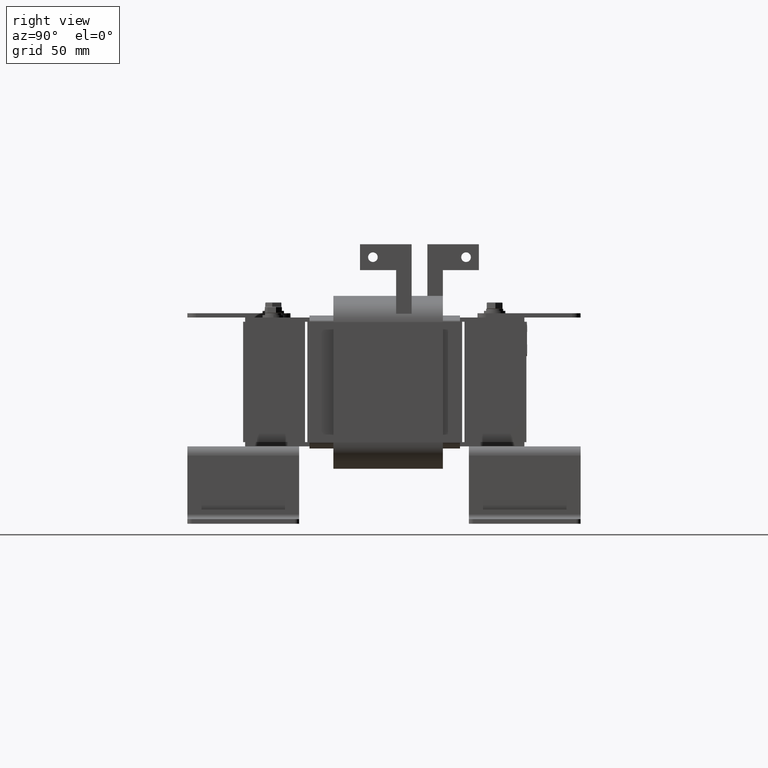
[diagram: clean part render]
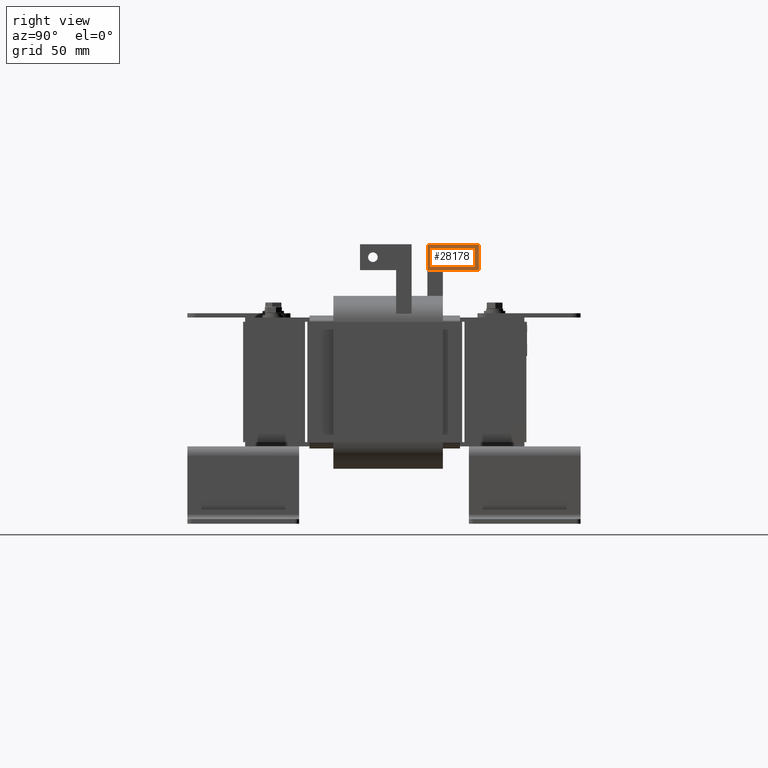
[diagram: same view with one face highlighted and labeled with its STEP entity id]
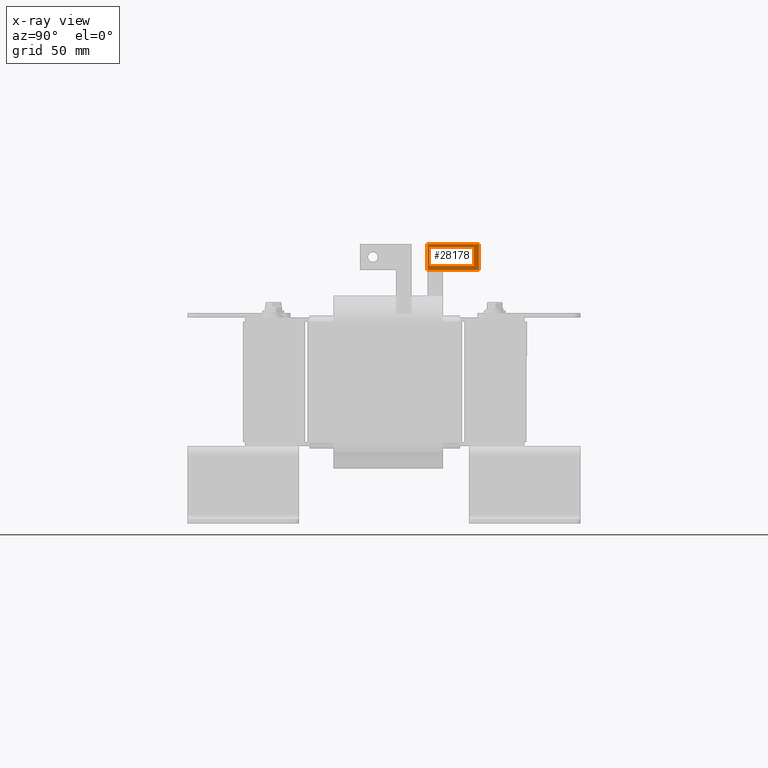
[diagram: x-ray of the same camera — body ghosted, the highlighted face saturated]
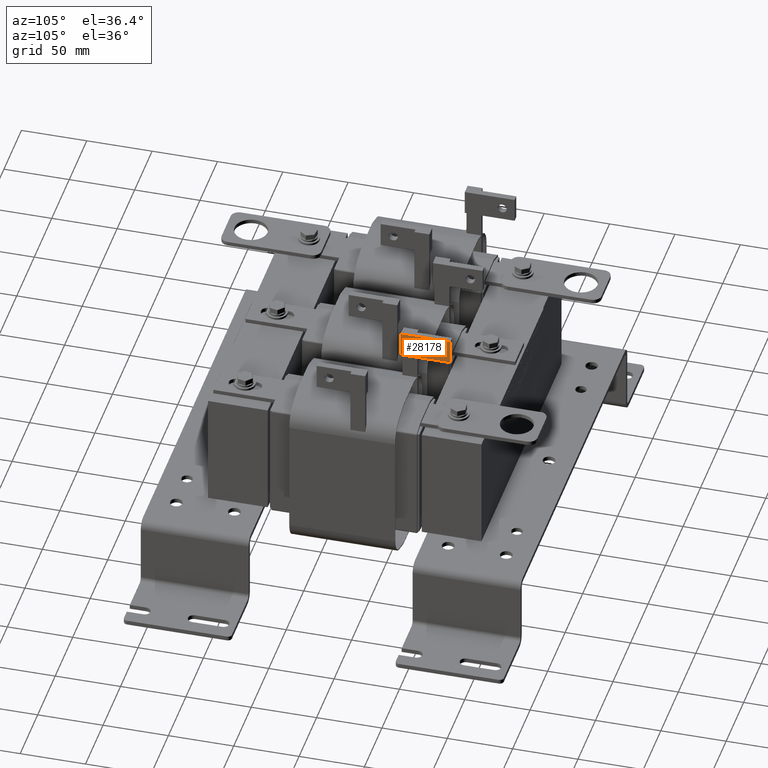
[diagram: same view with one face highlighted and labeled with its STEP entity id]
A machine part, right view. The second image highlights one B-rep face of the part: STEP entity #28178.
The next image is the same camera in x-ray: the body ghosted, the highlighted face saturated — about 0% of this face is hidden behind the body in this view.
A second angle (auxiliary view) of the same face is appended — the face is thin or edge-on in the first view.
In plain terms, the highlighted planar face has unit normal (-1, 0, 0).
Its self-contained STEP definition (entity closure, byte-faithful):
#1019=FACE_BOUND('',#4934,.T.);
#1826=PLANE('',#30867);
#3312=FACE_OUTER_BOUND('',#4933,.T.);
#4933=EDGE_LOOP('',(#26192,#26193,#26194,#26195));
#4934=EDGE_LOOP('',(#26196));
#7646=LINE('',#49490,#10365);
#7650=LINE('',#49497,#10369);
#7653=LINE('',#49503,#10372);
#7655=LINE('',#49506,#10374);
#10365=VECTOR('',#38199,0.393700787401575);
#10369=VECTOR('',#38205,0.393700787401575);
#10372=VECTOR('',#38210,0.393700787401575);
#10374=VECTOR('',#38214,0.393700787401575);
#11327=CIRCLE('',#30861,0.14);
#14009=VERTEX_POINT('',#49478);
#14013=VERTEX_POINT('',#49487);
#14014=VERTEX_POINT('',#49489);
#14016=VERTEX_POINT('',#49495);
#14018=VERTEX_POINT('',#49501);
#18065=EDGE_CURVE('',#14009,#14009,#11327,.T.);
#18070=EDGE_CURVE('',#14013,#14014,#7646,.T.);
#18074=EDGE_CURVE('',#14016,#14013,#7650,.T.);
#18077=EDGE_CURVE('',#14018,#14016,#7653,.T.);
#18079=EDGE_CURVE('',#14014,#14018,#7655,.T.);
#26192=ORIENTED_EDGE('',*,*,#18079,.F.);
#26193=ORIENTED_EDGE('',*,*,#18070,.F.);
#26194=ORIENTED_EDGE('',*,*,#18074,.F.);
#26195=ORIENTED_EDGE('',*,*,#18077,.F.);
#26196=ORIENTED_EDGE('',*,*,#18065,.T.);
#28178=ADVANCED_FACE('',(#3312,#1019),#1826,.F.);
#30861=AXIS2_PLACEMENT_3D('',#49479,#38190,#38191);
#30867=AXIS2_PLACEMENT_3D('',#49507,#38215,#38216);
#38190=DIRECTION('center_axis',(0.,0.,1.));
#38191=DIRECTION('ref_axis',(-1.,0.,0.));
#38199=DIRECTION('',(3.06161699786838E-16,-1.,0.));
#38205=DIRECTION('',(-1.,-2.3311769545935E-16,0.));
#38210=DIRECTION('',(-1.16558847729675E-16,1.,0.));
#38214=DIRECTION('',(1.,0.,0.));
#38215=DIRECTION('center_axis',(0.,0.,1.));
#38216=DIRECTION('ref_axis',(1.,0.,0.));
#49478=CARTESIAN_POINT('',(0.515,1.125,0.));
#49479=CARTESIAN_POINT('Origin',(0.375,1.125,0.));
#49487=CARTESIAN_POINT('',(-4.59242549680257E-16,1.5,0.));
#49489=CARTESIAN_POINT('',(0.,0.,0.));
#49490=CARTESIAN_POINT('',(-4.59242549680257E-16,1.5,0.));
#49495=CARTESIAN_POINT('',(0.75,1.5,0.));
#49497=CARTESIAN_POINT('',(0.75,1.5,0.));
#49501=CARTESIAN_POINT('',(0.75,0.,0.));
#49503=CARTESIAN_POINT('',(0.75,0.,0.));
#49506=CARTESIAN_POINT('',(0.,0.,0.));
#49507=CARTESIAN_POINT('Origin',(0.375,0.75,0.));